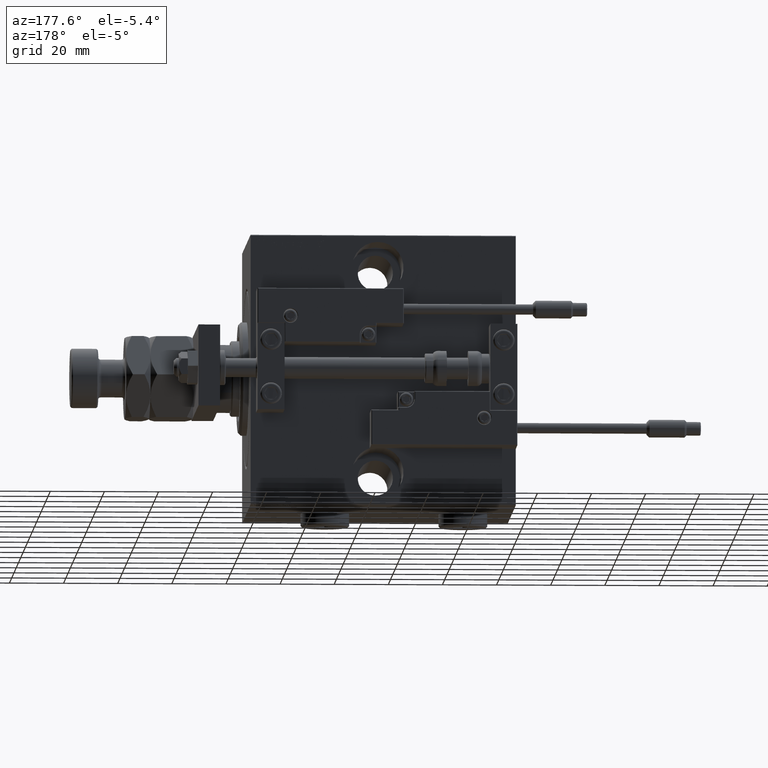
[diagram: clean part render]
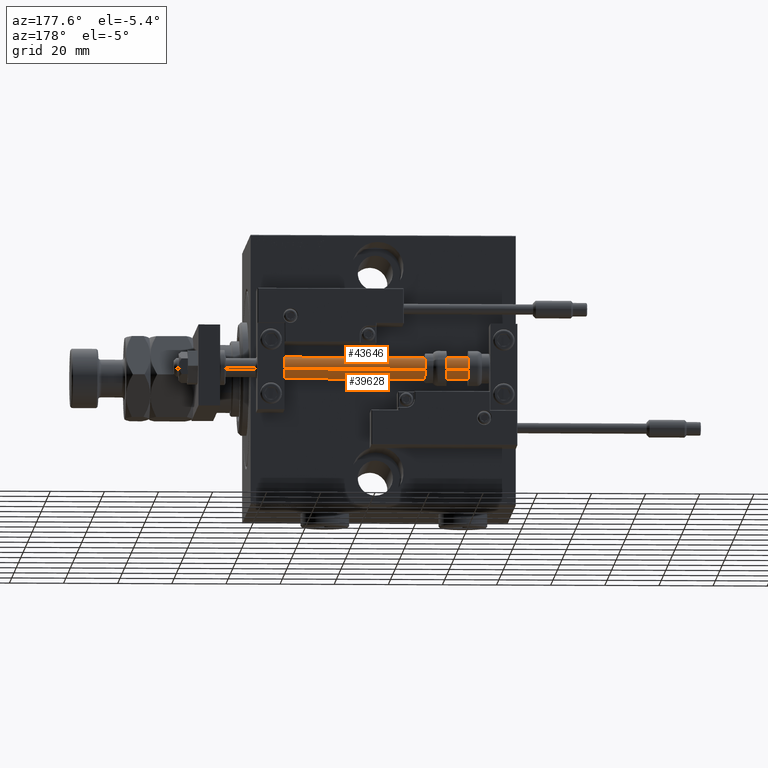
[diagram: same view with one multi-face feature highlighted, each face labeled with its STEP entity id]
A machine part, auxiliary view. The highlighted faces form ONE feature: a constant-radius fillet chain: 2 tangent blend faces with common blend radius 4 mm. The faces share edges in the B-rep.
Their STEP definitions:
[1] entity #43646 (Cylinder):
#4177 = VERTEX_POINT ( 'NONE', #10851 ) ;
#4208 = VECTOR ( 'NONE', #40047, 1000.000000000000000 ) ;
#5820 = DIRECTION ( 'NONE',  ( 0.000000000000000000, 0.000000000000000000, 1.000000000000000000 ) ) ;
#6438 = DIRECTION ( 'NONE',  ( -0.000000000000000000, -0.000000000000000000, -1.000000000000000000 ) ) ;
#7296 = CARTESIAN_POINT ( 'NONE',  ( 0.000000000000000000, 0.000000000000000000, 98.00000000000000000 ) ) ;
#8088 = DIRECTION ( 'NONE',  ( -0.000000000000000000, -0.000000000000000000, 1.000000000000000000 ) ) ;
#8205 = VERTEX_POINT ( 'NONE', #45056 ) ;
#10632 = ORIENTED_EDGE ( 'NONE', *, *, #15835, .T. ) ;
#10851 = CARTESIAN_POINT ( 'NONE',  ( -4.000000000000000000, 0.000000000000000000, 98.00000000000000000 ) ) ;
#11640 = ORIENTED_EDGE ( 'NONE', *, *, #40322, .F. ) ;
#11788 = CARTESIAN_POINT ( 'NONE',  ( -4.000000000000000000, 0.000000000000000000, 2.000000000000029310 ) ) ;
#14644 = CARTESIAN_POINT ( 'NONE',  ( 0.000000000000000000, 0.000000000000000000, 98.00000000000000000 ) ) ;
#15835 = EDGE_CURVE ( 'NONE', #18015, #50648, #30870, .T. ) ;
#17873 = DIRECTION ( 'NONE',  ( 1.000000000000000000, 0.000000000000000000, 0.000000000000000000 ) ) ;
#18015 = VERTEX_POINT ( 'NONE', #11788 ) ;
#22780 = EDGE_CURVE ( 'NONE', #8205, #50648, #34304, .T. ) ;
#24136 = CIRCLE ( 'NONE', #52358, 4.000000000000000000 ) ;
#24439 = CARTESIAN_POINT ( 'NONE',  ( 0.000000000000000000, 0.000000000000000000, 2.000000000000029310 ) ) ;
#26606 = DIRECTION ( 'NONE',  ( -0.000000000000000000, -0.000000000000000000, -1.000000000000000000 ) ) ;
#27140 = DIRECTION ( 'NONE',  ( -1.000000000000000000, 0.000000000000000000, 0.000000000000000000 ) ) ;
#30759 = CARTESIAN_POINT ( 'NONE',  ( -4.000000000000000000, 0.000000000000000000, 98.00000000000000000 ) ) ;
#30870 = CIRCLE ( 'NONE', #47993, 4.000000000000000000 ) ;
#32675 = EDGE_LOOP ( 'NONE', ( #37756, #11640, #51545, #10632 ) ) ;
#33004 = DIRECTION ( 'NONE',  ( 1.000000000000000000, 0.000000000000000000, 0.000000000000000000 ) ) ;
#34304 = LINE ( 'NONE', #38061, #44819 ) ;
#35120 = EDGE_CURVE ( 'NONE', #4177, #18015, #48080, .T. ) ;
#36418 = CARTESIAN_POINT ( 'NONE',  ( 4.000000000000000000, 4.898587196589412829E-16, 2.000000000000029310 ) ) ;
#37756 = ORIENTED_EDGE ( 'NONE', *, *, #22780, .F. ) ;
#38061 = CARTESIAN_POINT ( 'NONE',  ( 4.000000000000000000, 4.898587196589412829E-16, 98.00000000000000000 ) ) ;
#40047 = DIRECTION ( 'NONE',  ( -0.000000000000000000, -0.000000000000000000, -1.000000000000000000 ) ) ;
#40322 = EDGE_CURVE ( 'NONE', #4177, #8205, #24136, .T. ) ;
#41339 = AXIS2_PLACEMENT_3D ( 'NONE', #7296, #26606, #27140 ) ;
#43646 = ADVANCED_FACE ( 'NONE', ( #43721 ), #51496, .T. ) ;
#43721 = FACE_OUTER_BOUND ( 'NONE', #32675, .T. ) ;
#44819 = VECTOR ( 'NONE', #6438, 1000.000000000000000 ) ;
#45056 = CARTESIAN_POINT ( 'NONE',  ( 4.000000000000000000, 4.898587196589412829E-16, 98.00000000000000000 ) ) ;
#47993 = AXIS2_PLACEMENT_3D ( 'NONE', #24439, #8088, #33004 ) ;
#48080 = LINE ( 'NONE', #30759, #4208 ) ;
#50648 = VERTEX_POINT ( 'NONE', #36418 ) ;
#51496 = CYLINDRICAL_SURFACE ( 'NONE', #41339, 4.000000000000000000 ) ;
#51545 = ORIENTED_EDGE ( 'NONE', *, *, #35120, .T. ) ;
#52358 = AXIS2_PLACEMENT_3D ( 'NONE', #14644, #5820, #17873 ) ;
[2] entity #39628 (Cylinder):
#622 = ORIENTED_EDGE ( 'NONE', *, *, #22780, .T. ) ;
#2447 = DIRECTION ( 'NONE',  ( -0.000000000000000000, -0.000000000000000000, -1.000000000000000000 ) ) ;
#4177 = VERTEX_POINT ( 'NONE', #10851 ) ;
#4208 = VECTOR ( 'NONE', #40047, 1000.000000000000000 ) ;
#4525 = DIRECTION ( 'NONE',  ( -0.000000000000000000, -0.000000000000000000, 1.000000000000000000 ) ) ;
#5560 = AXIS2_PLACEMENT_3D ( 'NONE', #45508, #4525, #49787 ) ;
#6136 = EDGE_CURVE ( 'NONE', #50648, #18015, #7278, .T. ) ;
#6438 = DIRECTION ( 'NONE',  ( -0.000000000000000000, -0.000000000000000000, -1.000000000000000000 ) ) ;
#7278 = CIRCLE ( 'NONE', #5560, 4.000000000000000000 ) ;
#8205 = VERTEX_POINT ( 'NONE', #45056 ) ;
#10851 = CARTESIAN_POINT ( 'NONE',  ( -4.000000000000000000, 0.000000000000000000, 98.00000000000000000 ) ) ;
#11788 = CARTESIAN_POINT ( 'NONE',  ( -4.000000000000000000, 0.000000000000000000, 2.000000000000029310 ) ) ;
#18015 = VERTEX_POINT ( 'NONE', #11788 ) ;
#21041 = EDGE_LOOP ( 'NONE', ( #25085, #622, #47751, #22365 ) ) ;
#21940 = EDGE_CURVE ( 'NONE', #8205, #4177, #47338, .T. ) ;
#22365 = ORIENTED_EDGE ( 'NONE', *, *, #35120, .F. ) ;
#22776 = CARTESIAN_POINT ( 'NONE',  ( 0.000000000000000000, 0.000000000000000000, 98.00000000000000000 ) ) ;
#22780 = EDGE_CURVE ( 'NONE', #8205, #50648, #34304, .T. ) ;
#25085 = ORIENTED_EDGE ( 'NONE', *, *, #21940, .F. ) ;
#26837 = DIRECTION ( 'NONE',  ( -1.000000000000000000, 0.000000000000000000, 0.000000000000000000 ) ) ;
#29413 = AXIS2_PLACEMENT_3D ( 'NONE', #22776, #31340, #47674 ) ;
#30759 = CARTESIAN_POINT ( 'NONE',  ( -4.000000000000000000, 0.000000000000000000, 98.00000000000000000 ) ) ;
#31340 = DIRECTION ( 'NONE',  ( 0.000000000000000000, 0.000000000000000000, 1.000000000000000000 ) ) ;
#33506 = AXIS2_PLACEMENT_3D ( 'NONE', #38621, #2447, #26837 ) ;
#34304 = LINE ( 'NONE', #38061, #44819 ) ;
#34878 = FACE_OUTER_BOUND ( 'NONE', #21041, .T. ) ;
#35120 = EDGE_CURVE ( 'NONE', #4177, #18015, #48080, .T. ) ;
#35396 = CYLINDRICAL_SURFACE ( 'NONE', #33506, 4.000000000000000000 ) ;
#36418 = CARTESIAN_POINT ( 'NONE',  ( 4.000000000000000000, 4.898587196589412829E-16, 2.000000000000029310 ) ) ;
#38061 = CARTESIAN_POINT ( 'NONE',  ( 4.000000000000000000, 4.898587196589412829E-16, 98.00000000000000000 ) ) ;
#38621 = CARTESIAN_POINT ( 'NONE',  ( 0.000000000000000000, 0.000000000000000000, 98.00000000000000000 ) ) ;
#39628 = ADVANCED_FACE ( 'NONE', ( #34878 ), #35396, .T. ) ;
#40047 = DIRECTION ( 'NONE',  ( -0.000000000000000000, -0.000000000000000000, -1.000000000000000000 ) ) ;
#44819 = VECTOR ( 'NONE', #6438, 1000.000000000000000 ) ;
#45056 = CARTESIAN_POINT ( 'NONE',  ( 4.000000000000000000, 4.898587196589412829E-16, 98.00000000000000000 ) ) ;
#45508 = CARTESIAN_POINT ( 'NONE',  ( 0.000000000000000000, 0.000000000000000000, 2.000000000000029310 ) ) ;
#47338 = CIRCLE ( 'NONE', #29413, 4.000000000000000000 ) ;
#47674 = DIRECTION ( 'NONE',  ( 1.000000000000000000, 0.000000000000000000, 0.000000000000000000 ) ) ;
#47751 = ORIENTED_EDGE ( 'NONE', *, *, #6136, .T. ) ;
#48080 = LINE ( 'NONE', #30759, #4208 ) ;
#49787 = DIRECTION ( 'NONE',  ( 1.000000000000000000, 0.000000000000000000, 0.000000000000000000 ) ) ;
#50648 = VERTEX_POINT ( 'NONE', #36418 ) ;